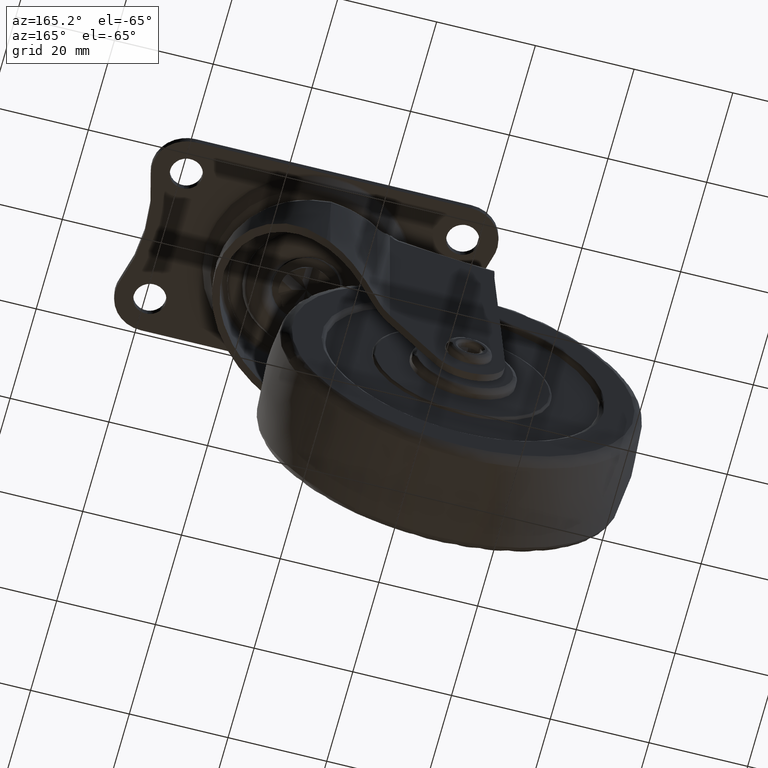
[diagram: clean part render]
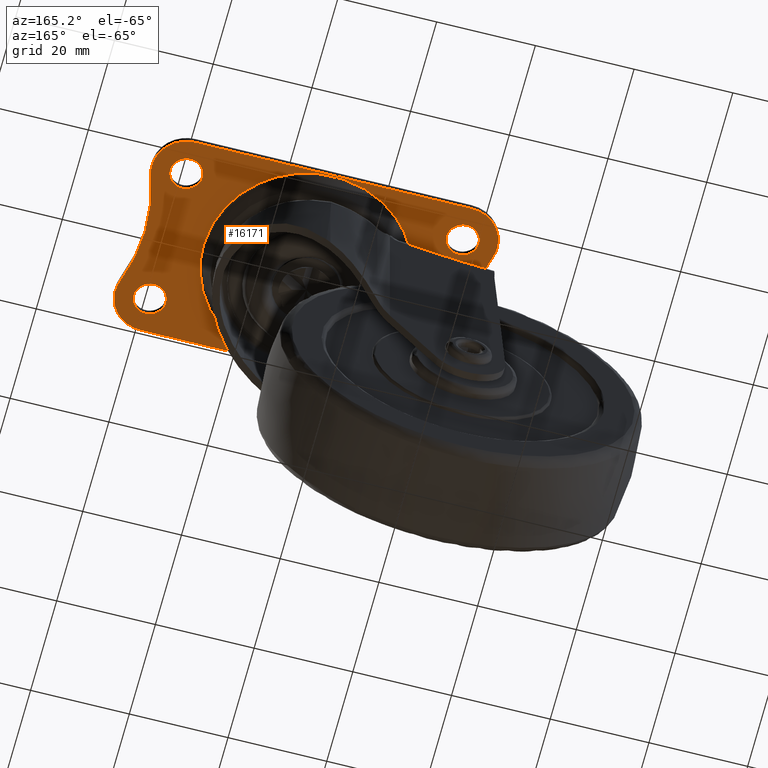
[diagram: same view with one face highlighted and labeled with its STEP entity id]
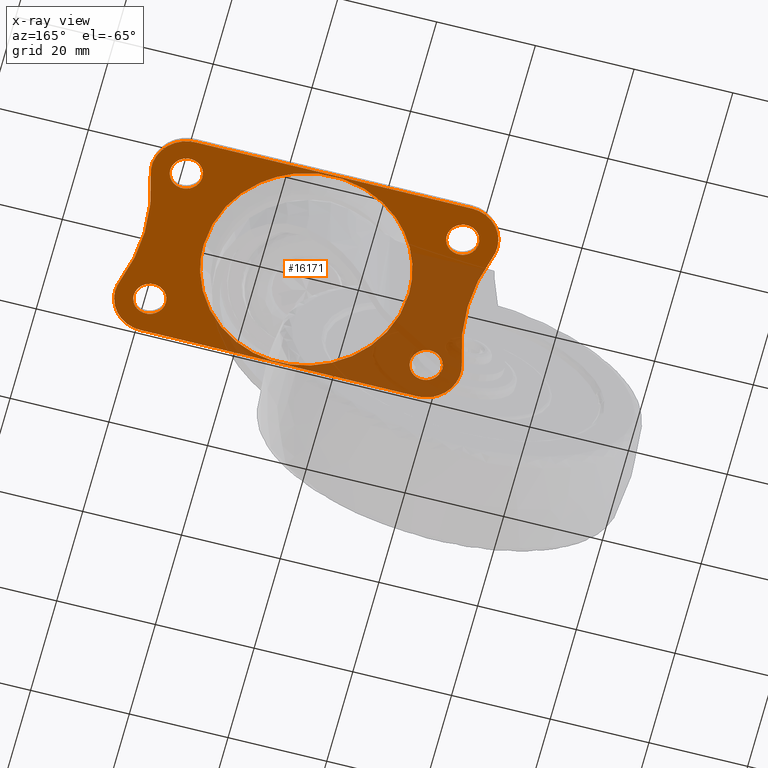
[diagram: x-ray of the same camera — body ghosted, the highlighted face saturated]
A machine part, auxiliary view. The second image highlights one B-rep face of the part: STEP entity #16171.
The next image is the same camera in x-ray: the body ghosted, the highlighted face saturated — about 35% of this face is hidden behind the body in this view.
In plain terms, the highlighted face is a freeform B-spline surface patch.
Its self-contained STEP definition (entity closure, byte-faithful):
#9515=CARTESIAN_POINT('',(-28.383611239365209,10.772719237960120,3.549285E-017));
#9516=VERTEX_POINT('',#9515);
#9517=CARTESIAN_POINT('',(-24.750000199999999,14.0,0.0));
#9518=VERTEX_POINT('',#9517);
#9519=CARTESIAN_POINT('',(-28.383611239365212,10.772719237960120,3.549285E-017));
#9520=CARTESIAN_POINT('',(-28.192478377365045,10.750000199999999,0.0));
#9521=CARTESIAN_POINT('',(-28.0,10.750000200000001,0.0));
#9522=CARTESIAN_POINT('',(-24.750000200000002,10.750000200000001,0.0));
#9523=CARTESIAN_POINT('',(-24.750000199999999,14.0,0.0));
#9531=(BOUNDED_CURVE()B_SPLINE_CURVE(2,(#9519,#9520,#9521,#9522,#9523),.UNSPECIFIED.,.F.,.U.)B_SPLINE_CURVE_WITH_KNOTS((3,2,3),(0.229562473480287,0.250000000000000,0.500000000000000),.UNSPECIFIED.)CURVE()GEOMETRIC_REPRESENTATION_ITEM()RATIONAL_B_SPLINE_CURVE((0.956026754118583,0.976055948292223,1.0,0.707106781186548,1.0))REPRESENTATION_ITEM(''));
#9532=EDGE_CURVE('',#9516,#9518,#9531,.T.);
#9573=CARTESIAN_POINT('',(-27.801592258672109,17.243937895241089,-5.551115E-017));
#9574=VERTEX_POINT('',#9573);
#9580=CARTESIAN_POINT('',(-24.750000199999999,14.0,0.0));
#9581=CARTESIAN_POINT('',(-24.750000199999995,17.057294529209173,0.0));
#9582=CARTESIAN_POINT('',(-27.801592258672105,17.243937895241089,-5.551115E-017));
#9590=(BOUNDED_CURVE()B_SPLINE_CURVE(2,(#9580,#9581,#9582),.UNSPECIFIED.,.F.,.U.)B_SPLINE_CURVE_WITH_KNOTS((3,3),(0.500000000000000,0.739332962236722),.UNSPECIFIED.)CURVE()GEOMETRIC_REPRESENTATION_ITEM()RATIONAL_B_SPLINE_CURVE((1.0,0.719603993289312,0.976072041661959))REPRESENTATION_ITEM(''));
#9591=EDGE_CURVE('',#9518,#9574,#9590,.T.);
#9614=CARTESIAN_POINT('',(-31.249999800000001,14.0,0.0));
#9615=VERTEX_POINT('',#9614);
#9616=CARTESIAN_POINT('',(-31.249999800000001,14.0,0.0));
#9617=CARTESIAN_POINT('',(-31.249999800000005,11.113432968901122,0.0));
#9618=CARTESIAN_POINT('',(-28.383611239365212,10.772719237960120,3.549285E-017));
#9626=(BOUNDED_CURVE()B_SPLINE_CURVE(2,(#9616,#9617,#9618),.UNSPECIFIED.,.F.,.U.)B_SPLINE_CURVE_WITH_KNOTS((3,3),(0.0,0.229562473480286),.UNSPECIFIED.)CURVE()GEOMETRIC_REPRESENTATION_ITEM()RATIONAL_B_SPLINE_CURVE((1.0,0.731050832894324,0.956026754118583))REPRESENTATION_ITEM(''));
#9627=EDGE_CURVE('',#9615,#9516,#9626,.T.);
#9629=CARTESIAN_POINT('',(-27.801592258672105,17.243937895241086,-5.551115E-017));
#9630=CARTESIAN_POINT('',(-27.900703525340681,17.249999800000001,0.0));
#9631=CARTESIAN_POINT('',(-28.0,17.249999800000001,0.0));
#9632=CARTESIAN_POINT('',(-31.249999800000008,17.249999800000001,0.0));
#9633=CARTESIAN_POINT('',(-31.249999800000001,14.0,0.0));
#9641=(BOUNDED_CURVE()B_SPLINE_CURVE(2,(#9629,#9630,#9631,#9632,#9633),.UNSPECIFIED.,.F.,.U.)B_SPLINE_CURVE_WITH_KNOTS((3,2,3),(0.739332962236722,0.750000000000000,1.0),.UNSPECIFIED.)CURVE()GEOMETRIC_REPRESENTATION_ITEM()RATIONAL_B_SPLINE_CURVE((0.976072041661957,0.987502787897235,1.0,0.707106781186548,1.0))REPRESENTATION_ITEM(''));
#9642=EDGE_CURVE('',#9574,#9615,#9641,.T.);
#9701=CARTESIAN_POINT('',(-28.383611239365209,-17.227288762039748,3.549285E-017));
#9702=VERTEX_POINT('',#9701);
#9703=CARTESIAN_POINT('',(-24.750000199999999,-14.000007999999861,0.0));
#9704=VERTEX_POINT('',#9703);
#9705=CARTESIAN_POINT('',(-28.383611239365209,-17.227288762039748,3.549285E-017));
#9706=CARTESIAN_POINT('',(-28.192478377365049,-17.250007799999860,0.0));
#9707=CARTESIAN_POINT('',(-28.0,-17.250007799999860,0.0));
#9708=CARTESIAN_POINT('',(-24.750000200000002,-17.250007799999860,0.0));
#9709=CARTESIAN_POINT('',(-24.750000199999999,-14.000007999999861,0.0));
#9717=(BOUNDED_CURVE()B_SPLINE_CURVE(2,(#9705,#9706,#9707,#9708,#9709),.UNSPECIFIED.,.F.,.U.)B_SPLINE_CURVE_WITH_KNOTS((3,2,3),(0.229562473480286,0.250000000000000,0.500000000000000),.UNSPECIFIED.)CURVE()GEOMETRIC_REPRESENTATION_ITEM()RATIONAL_B_SPLINE_CURVE((0.956026754118583,0.976055948292223,1.0,0.707106781186548,1.0))REPRESENTATION_ITEM(''));
#9718=EDGE_CURVE('',#9702,#9704,#9717,.T.);
#9759=CARTESIAN_POINT('',(-27.801592258672109,-10.756070104758770,-5.551115E-017));
#9760=VERTEX_POINT('',#9759);
#9766=CARTESIAN_POINT('',(-24.750000199999999,-14.000007999999861,0.0));
#9767=CARTESIAN_POINT('',(-24.750000199999995,-10.942713470790693,0.0));
#9768=CARTESIAN_POINT('',(-27.801592258672105,-10.756070104758768,-5.551115E-017));
#9776=(BOUNDED_CURVE()B_SPLINE_CURVE(2,(#9766,#9767,#9768),.UNSPECIFIED.,.F.,.U.)B_SPLINE_CURVE_WITH_KNOTS((3,3),(0.500000000000000,0.739332962236722),.UNSPECIFIED.)CURVE()GEOMETRIC_REPRESENTATION_ITEM()RATIONAL_B_SPLINE_CURVE((1.0,0.719603993289312,0.976072041661959))REPRESENTATION_ITEM(''));
#9777=EDGE_CURVE('',#9704,#9760,#9776,.T.);
#9800=CARTESIAN_POINT('',(-31.249999800000001,-14.000007999999861,0.0));
#9801=VERTEX_POINT('',#9800);
#9802=CARTESIAN_POINT('',(-31.249999800000001,-14.000007999999861,0.0));
#9803=CARTESIAN_POINT('',(-31.249999800000001,-16.886575031098747,0.0));
#9804=CARTESIAN_POINT('',(-28.383611239365209,-17.227288762039748,3.549285E-017));
#9812=(BOUNDED_CURVE()B_SPLINE_CURVE(2,(#9802,#9803,#9804),.UNSPECIFIED.,.F.,.U.)B_SPLINE_CURVE_WITH_KNOTS((3,3),(0.0,0.229562473480286),.UNSPECIFIED.)CURVE()GEOMETRIC_REPRESENTATION_ITEM()RATIONAL_B_SPLINE_CURVE((1.0,0.731050832894324,0.956026754118583))REPRESENTATION_ITEM(''));
#9813=EDGE_CURVE('',#9801,#9702,#9812,.T.);
#9815=CARTESIAN_POINT('',(-27.801592258672105,-10.756070104758775,-5.551115E-017));
#9816=CARTESIAN_POINT('',(-27.900703525340681,-10.750008199999860,0.0));
#9817=CARTESIAN_POINT('',(-28.0,-10.750008199999860,0.0));
#9818=CARTESIAN_POINT('',(-31.249999800000008,-10.750008199999861,0.0));
#9819=CARTESIAN_POINT('',(-31.249999800000001,-14.000007999999861,0.0));
#9827=(BOUNDED_CURVE()B_SPLINE_CURVE(2,(#9815,#9816,#9817,#9818,#9819),.UNSPECIFIED.,.F.,.U.)B_SPLINE_CURVE_WITH_KNOTS((3,2,3),(0.739332962236722,0.750000000000000,1.0),.UNSPECIFIED.)CURVE()GEOMETRIC_REPRESENTATION_ITEM()RATIONAL_B_SPLINE_CURVE((0.976072041661957,0.987502787897235,1.0,0.707106781186548,1.0))REPRESENTATION_ITEM(''));
#9828=EDGE_CURVE('',#9760,#9801,#9827,.T.);
#9887=CARTESIAN_POINT('',(27.616388760634791,10.772719237960120,3.549285E-017));
#9888=VERTEX_POINT('',#9887);
#9889=CARTESIAN_POINT('',(31.249999800000001,14.0,0.0));
#9890=VERTEX_POINT('',#9889);
#9891=CARTESIAN_POINT('',(27.616388760634791,10.772719237960118,3.549285E-017));
#9892=CARTESIAN_POINT('',(27.807521622634955,10.750000199999997,0.0));
#9893=CARTESIAN_POINT('',(28.0,10.750000200000001,0.0));
#9894=CARTESIAN_POINT('',(31.249999800000008,10.750000200000001,0.0));
#9895=CARTESIAN_POINT('',(31.249999800000001,14.0,0.0));
#9903=(BOUNDED_CURVE()B_SPLINE_CURVE(2,(#9891,#9892,#9893,#9894,#9895),.UNSPECIFIED.,.F.,.U.)B_SPLINE_CURVE_WITH_KNOTS((3,2,3),(0.229562473480287,0.250000000000000,0.500000000000000),.UNSPECIFIED.)CURVE()GEOMETRIC_REPRESENTATION_ITEM()RATIONAL_B_SPLINE_CURVE((0.956026754118583,0.976055948292223,1.0,0.707106781186548,1.0))REPRESENTATION_ITEM(''));
#9904=EDGE_CURVE('',#9888,#9890,#9903,.T.);
#9945=CARTESIAN_POINT('',(28.198407741327902,17.243937895241089,-5.551115E-017));
#9946=VERTEX_POINT('',#9945);
#9952=CARTESIAN_POINT('',(31.249999800000001,14.0,0.0));
#9953=CARTESIAN_POINT('',(31.249999799999998,17.057294529209173,0.0));
#9954=CARTESIAN_POINT('',(28.198407741327895,17.243937895241089,-5.551115E-017));
#9962=(BOUNDED_CURVE()B_SPLINE_CURVE(2,(#9952,#9953,#9954),.UNSPECIFIED.,.F.,.U.)B_SPLINE_CURVE_WITH_KNOTS((3,3),(0.500000000000000,0.739332962236722),.UNSPECIFIED.)CURVE()GEOMETRIC_REPRESENTATION_ITEM()RATIONAL_B_SPLINE_CURVE((1.0,0.719603993289312,0.976072041661959))REPRESENTATION_ITEM(''));
#9963=EDGE_CURVE('',#9890,#9946,#9962,.T.);
#9986=CARTESIAN_POINT('',(24.750000199999999,14.0,0.0));
#9987=VERTEX_POINT('',#9986);
#9988=CARTESIAN_POINT('',(24.750000199999999,14.0,0.0));
#9989=CARTESIAN_POINT('',(24.750000199999999,11.113432968901121,0.0));
#9990=CARTESIAN_POINT('',(27.616388760634795,10.772719237960118,3.549285E-017));
#9998=(BOUNDED_CURVE()B_SPLINE_CURVE(2,(#9988,#9989,#9990),.UNSPECIFIED.,.F.,.U.)B_SPLINE_CURVE_WITH_KNOTS((3,3),(0.0,0.229562473480287),.UNSPECIFIED.)CURVE()GEOMETRIC_REPRESENTATION_ITEM()RATIONAL_B_SPLINE_CURVE((1.0,0.731050832894324,0.956026754118583))REPRESENTATION_ITEM(''));
#9999=EDGE_CURVE('',#9987,#9888,#9998,.T.);
#10001=CARTESIAN_POINT('',(28.198407741327895,17.243937895241086,-5.551115E-017));
#10002=CARTESIAN_POINT('',(28.099296474659322,17.249999800000001,0.0));
#10003=CARTESIAN_POINT('',(28.0,17.249999800000001,0.0));
#10004=CARTESIAN_POINT('',(24.750000200000002,17.249999800000001,0.0));
#10005=CARTESIAN_POINT('',(24.750000199999999,14.0,0.0));
#10013=(BOUNDED_CURVE()B_SPLINE_CURVE(2,(#10001,#10002,#10003,#10004,#10005),.UNSPECIFIED.,.F.,.U.)B_SPLINE_CURVE_WITH_KNOTS((3,2,3),(0.739332962236722,0.750000000000000,1.0),.UNSPECIFIED.)CURVE()GEOMETRIC_REPRESENTATION_ITEM()RATIONAL_B_SPLINE_CURVE((0.976072041661957,0.987502787897235,1.0,0.707106781186548,1.0))REPRESENTATION_ITEM(''));
#10014=EDGE_CURVE('',#9946,#9987,#10013,.T.);
#10073=CARTESIAN_POINT('',(27.616388760634791,-17.227280762039879,3.549285E-017));
#10074=VERTEX_POINT('',#10073);
#10075=CARTESIAN_POINT('',(31.249999800000001,-14.0,0.0));
#10076=VERTEX_POINT('',#10075);
#10077=CARTESIAN_POINT('',(27.616388760634788,-17.227280762039882,3.549285E-017));
#10078=CARTESIAN_POINT('',(27.807521622634951,-17.249999799999998,0.0));
#10079=CARTESIAN_POINT('',(28.0,-17.249999800000001,0.0));
#10080=CARTESIAN_POINT('',(31.249999800000008,-17.249999800000001,0.0));
#10081=CARTESIAN_POINT('',(31.249999800000001,-14.0,0.0));
#10089=(BOUNDED_CURVE()B_SPLINE_CURVE(2,(#10077,#10078,#10079,#10080,#10081),.UNSPECIFIED.,.F.,.U.)B_SPLINE_CURVE_WITH_KNOTS((3,2,3),(0.229562473480286,0.250000000000000,0.500000000000000),.UNSPECIFIED.)CURVE()GEOMETRIC_REPRESENTATION_ITEM()RATIONAL_B_SPLINE_CURVE((0.956026754118583,0.976055948292223,1.0,0.707106781186548,1.0))REPRESENTATION_ITEM(''));
#10090=EDGE_CURVE('',#10074,#10076,#10089,.T.);
#10131=CARTESIAN_POINT('',(28.198407741327902,-10.756062104758909,-5.551115E-017));
#10132=VERTEX_POINT('',#10131);
#10138=CARTESIAN_POINT('',(31.249999800000001,-14.0,0.0));
#10139=CARTESIAN_POINT('',(31.249999799999998,-10.942705470790830,0.0));
#10140=CARTESIAN_POINT('',(28.198407741327902,-10.756062104758916,-5.551115E-017));
#10148=(BOUNDED_CURVE()B_SPLINE_CURVE(2,(#10138,#10139,#10140),.UNSPECIFIED.,.F.,.U.)B_SPLINE_CURVE_WITH_KNOTS((3,3),(0.500000000000000,0.739332962236722),.UNSPECIFIED.)CURVE()GEOMETRIC_REPRESENTATION_ITEM()RATIONAL_B_SPLINE_CURVE((1.0,0.719603993289312,0.976072041661959))REPRESENTATION_ITEM(''));
#10149=EDGE_CURVE('',#10076,#10132,#10148,.T.);
#10172=CARTESIAN_POINT('',(24.750000199999999,-14.0,0.0));
#10173=VERTEX_POINT('',#10172);
#10174=CARTESIAN_POINT('',(24.750000199999999,-14.0,0.0));
#10175=CARTESIAN_POINT('',(24.750000199999999,-16.886567031098878,0.0));
#10176=CARTESIAN_POINT('',(27.616388760634788,-17.227280762039882,3.549285E-017));
#10184=(BOUNDED_CURVE()B_SPLINE_CURVE(2,(#10174,#10175,#10176),.UNSPECIFIED.,.F.,.U.)B_SPLINE_CURVE_WITH_KNOTS((3,3),(0.0,0.229562473480286),.UNSPECIFIED.)CURVE()GEOMETRIC_REPRESENTATION_ITEM()RATIONAL_B_SPLINE_CURVE((1.0,0.731050832894324,0.956026754118583))REPRESENTATION_ITEM(''));
#10185=EDGE_CURVE('',#10173,#10074,#10184,.T.);
#10187=CARTESIAN_POINT('',(28.198407741327902,-10.756062104758913,-5.551115E-017));
#10188=CARTESIAN_POINT('',(28.099296474659322,-10.750000199999997,0.0));
#10189=CARTESIAN_POINT('',(28.0,-10.750000200000001,0.0));
#10190=CARTESIAN_POINT('',(24.750000200000002,-10.750000200000001,0.0));
#10191=CARTESIAN_POINT('',(24.750000199999999,-14.0,0.0));
#10199=(BOUNDED_CURVE()B_SPLINE_CURVE(2,(#10187,#10188,#10189,#10190,#10191),.UNSPECIFIED.,.F.,.U.)B_SPLINE_CURVE_WITH_KNOTS((3,2,3),(0.739332962236722,0.750000000000000,1.0),.UNSPECIFIED.)CURVE()GEOMETRIC_REPRESENTATION_ITEM()RATIONAL_B_SPLINE_CURVE((0.976072041661957,0.987502787897235,1.0,0.707106781186548,1.0))REPRESENTATION_ITEM(''));
#10200=EDGE_CURVE('',#10132,#10173,#10199,.T.);
#13275=CARTESIAN_POINT('',(7.606001770532384,19.358883315792870,-1.198900E-016));
#13276=VERTEX_POINT('',#13275);
#13290=CARTESIAN_POINT('',(20.799462165151049,0.0,0.0));
#13291=VERTEX_POINT('',#13290);
#13292=CARTESIAN_POINT('',(20.799462165151049,0.0,0.0));
#13293=CARTESIAN_POINT('',(20.799462165151056,14.175243258175271,0.0));
#13294=CARTESIAN_POINT('',(7.606001770532384,19.358883315792870,-1.198900E-016));
#13302=(BOUNDED_CURVE()B_SPLINE_CURVE(2,(#13292,#13293,#13294),.UNSPECIFIED.,.F.,.U.)B_SPLINE_CURVE_WITH_KNOTS((3,3),(0.500000000000000,0.687908131215531),.UNSPECIFIED.)CURVE()GEOMETRIC_REPRESENTATION_ITEM()RATIONAL_B_SPLINE_CURVE((1.0,0.779851930428251,0.890644759607974))REPRESENTATION_ITEM(''));
#13303=EDGE_CURVE('',#13291,#13276,#13302,.T.);
#13305=CARTESIAN_POINT('',(-20.799462165151049,0.0,0.0));
#13306=VERTEX_POINT('',#13305);
#13307=CARTESIAN_POINT('',(-20.799462165151049,0.0,0.0));
#13308=CARTESIAN_POINT('',(-20.799462165151056,-20.799462165151056,0.0));
#13309=CARTESIAN_POINT('',(0.0,-20.799462165151049,0.0));
#13310=CARTESIAN_POINT('',(20.799462165151056,-20.799462165151056,0.0));
#13311=CARTESIAN_POINT('',(20.799462165151049,0.0,0.0));
#13319=(BOUNDED_CURVE()B_SPLINE_CURVE(2,(#13307,#13308,#13309,#13310,#13311),.UNSPECIFIED.,.F.,.U.)B_SPLINE_CURVE_WITH_KNOTS((3,2,3),(0.0,0.250000000000000,0.500000000000000),.UNSPECIFIED.)CURVE()GEOMETRIC_REPRESENTATION_ITEM()RATIONAL_B_SPLINE_CURVE((1.0,0.707106781186547,1.0,0.707106781186547,1.0))REPRESENTATION_ITEM(''));
#13320=EDGE_CURVE('',#13306,#13291,#13319,.T.);
#13322=CARTESIAN_POINT('',(-18.351182982869229,9.790388628054897,-9.177684E-017));
#13323=VERTEX_POINT('',#13322);
#13324=CARTESIAN_POINT('',(-18.351182982869222,9.790388628054895,-9.177684E-017));
#13325=CARTESIAN_POINT('',(-20.799462165151049,5.201314488726688,0.0));
#13326=CARTESIAN_POINT('',(-20.799462165151049,0.0,0.0));
#13334=(BOUNDED_CURVE()B_SPLINE_CURVE(2,(#13324,#13325,#13326),.UNSPECIFIED.,.F.,.U.)B_SPLINE_CURVE_WITH_KNOTS((3,3),(0.919885466191762,1.0),.UNSPECIFIED.)CURVE()GEOMETRIC_REPRESENTATION_ITEM()RATIONAL_B_SPLINE_CURVE((0.872436381135683,0.906139985276664,1.0))REPRESENTATION_ITEM(''));
#13335=EDGE_CURVE('',#13323,#13306,#13334,.T.);
#13376=CARTESIAN_POINT('',(7.606001770532384,19.358883315792863,-1.198900E-016));
#13377=CARTESIAN_POINT('',(3.939423902550758,20.799462165151045,0.0));
#13378=CARTESIAN_POINT('',(0.0,20.799462165151049,0.0));
#13379=CARTESIAN_POINT('',(-12.477822749723179,20.799462165151052,0.0));
#13380=CARTESIAN_POINT('',(-18.351182982869226,9.790388628054897,-9.177684E-017));
#13388=(BOUNDED_CURVE()B_SPLINE_CURVE(2,(#13376,#13377,#13378,#13379,#13380),.UNSPECIFIED.,.F.,.U.)B_SPLINE_CURVE_WITH_KNOTS((3,2,3),(0.687908131215530,0.750000000000000,0.919885466191762),.UNSPECIFIED.)CURVE()GEOMETRIC_REPRESENTATION_ITEM()RATIONAL_B_SPLINE_CURVE((0.890644759607972,0.927254850758296,1.0,0.800966795909884,0.872436381135683))REPRESENTATION_ITEM(''));
#13389=EDGE_CURVE('',#13276,#13323,#13388,.T.);
#15782=CARTESIAN_POINT('',(34.612583487418703,11.703537585346320,0.0));
#15783=VERTEX_POINT('',#15782);
#15784=CARTESIAN_POINT('',(28.000001329768750,20.999999999999400,0.0));
#15785=VERTEX_POINT('',#15784);
#15786=CARTESIAN_POINT('',(34.612583487418732,11.703537585346311,0.0));
#15787=CARTESIAN_POINT('',(35.797259786264931,15.114771699912929,0.0));
#15788=CARTESIAN_POINT('',(33.704175913126392,18.057385506962429,0.0));
#15789=CARTESIAN_POINT('',(31.611092039987835,20.999999314011937,0.0));
#15790=CARTESIAN_POINT('',(28.000001329768750,20.999999999999400,0.0));
#15798=(BOUNDED_CURVE()B_SPLINE_CURVE(2,(#15786,#15787,#15788,#15789,#15790),.UNSPECIFIED.,.F.,.U.)B_SPLINE_CURVE_WITH_KNOTS((3,2,3),(0.0,0.500000000000000,1.0),.UNSPECIFIED.)CURVE()GEOMETRIC_REPRESENTATION_ITEM()RATIONAL_B_SPLINE_CURVE((1.0,0.888714424265561,1.0,0.888714424265561,1.0))REPRESENTATION_ITEM(''));
#15799=EDGE_CURVE('',#15783,#15785,#15798,.T.);
#15847=CARTESIAN_POINT('',(34.609303948770297,-11.694115936832601,0.0));
#15848=VERTEX_POINT('',#15847);
#15849=CARTESIAN_POINT('',(34.612583487418703,11.703537585346320,0.0));
#15850=CARTESIAN_POINT('',(30.527562404083348,0.005283705689020,0.0));
#15851=CARTESIAN_POINT('',(34.609303948770297,-11.694115936832601,0.0));
#15859=(BOUNDED_CURVE()B_SPLINE_CURVE(2,(#15849,#15850,#15851),.UNSPECIFIED.,.F.,.U.)CURVE()GEOMETRIC_REPRESENTATION_ITEM()QUASI_UNIFORM_CURVE()RATIONAL_B_SPLINE_CURVE((1.0,0.944140053967858,1.0))REPRESENTATION_ITEM(''));
#15860=EDGE_CURVE('',#15783,#15848,#15859,.T.);
#15900=CARTESIAN_POINT('',(28.0,-21.0,0.0));
#15901=VERTEX_POINT('',#15900);
#15902=CARTESIAN_POINT('',(28.0,-21.0,0.0));
#15903=CARTESIAN_POINT('',(31.614249456186542,-21.000000000000004,0.0));
#15904=CARTESIAN_POINT('',(33.707065289716411,-18.053320340031629,0.0));
#15905=CARTESIAN_POINT('',(35.799881123246294,-15.106640680063252,0.0));
#15906=CARTESIAN_POINT('',(34.609303948770290,-11.694115936832601,0.0));
#15914=(BOUNDED_CURVE()B_SPLINE_CURVE(2,(#15902,#15903,#15904,#15905,#15906),.UNSPECIFIED.,.F.,.U.)B_SPLINE_CURVE_WITH_KNOTS((3,2,3),(0.0,0.500000000000000,1.0),.UNSPECIFIED.)CURVE()GEOMETRIC_REPRESENTATION_ITEM()RATIONAL_B_SPLINE_CURVE((1.0,0.888551001029671,1.0,0.888551001029671,1.0))REPRESENTATION_ITEM(''));
#15915=EDGE_CURVE('',#15901,#15848,#15914,.T.);
#15957=CARTESIAN_POINT('',(-34.609300374364203,-11.694120049033801,0.0));
#15958=VERTEX_POINT('',#15957);
#15959=CARTESIAN_POINT('',(-28.000006108652400,-20.999999999997350,0.0));
#15960=VERTEX_POINT('',#15959);
#15961=CARTESIAN_POINT('',(-34.609300374364203,-11.694120049033801,0.0));
#15962=CARTESIAN_POINT('',(-35.799876129449011,-15.106642331600746,0.0));
#15963=CARTESIAN_POINT('',(-33.707064042312901,-18.053319731614579,0.0));
#15964=CARTESIAN_POINT('',(-31.614251955176787,-20.999997131628430,0.0));
#15965=CARTESIAN_POINT('',(-28.000006108652400,-20.999999999997350,0.0));
#15973=(BOUNDED_CURVE()B_SPLINE_CURVE(2,(#15961,#15962,#15963,#15964,#15965),.UNSPECIFIED.,.F.,.U.)B_SPLINE_CURVE_WITH_KNOTS((3,2,3),(0.0,0.500000000000000,1.0),.UNSPECIFIED.)CURVE()GEOMETRIC_REPRESENTATION_ITEM()RATIONAL_B_SPLINE_CURVE((1.0,0.888551145444471,1.0,0.888551145444471,1.0))REPRESENTATION_ITEM(''));
#15974=EDGE_CURVE('',#15958,#15960,#15973,.T.);
#16022=CARTESIAN_POINT('',(-34.611171447356462,11.699465691574160,0.0));
#16023=VERTEX_POINT('',#16022);
#16024=CARTESIAN_POINT('',(-34.609300374364203,-11.694120049033810,0.0));
#16025=CARTESIAN_POINT('',(-30.528361173387893,0.002999299034800,0.0));
#16026=CARTESIAN_POINT('',(-34.611171447356540,11.699465691574130,0.0));
#16034=(BOUNDED_CURVE()B_SPLINE_CURVE(2,(#16024,#16025,#16026),.UNSPECIFIED.,.F.,.U.)CURVE()GEOMETRIC_REPRESENTATION_ITEM()QUASI_UNIFORM_CURVE()RATIONAL_B_SPLINE_CURVE((1.0,0.944160055577155,1.0))REPRESENTATION_ITEM(''));
#16035=EDGE_CURVE('',#15958,#16023,#16034,.T.);
#16077=CARTESIAN_POINT('',(-27.999999525442600,20.999989999999450,-2.775558E-013));
#16078=VERTEX_POINT('',#16077);
#16084=CARTESIAN_POINT('',(-27.999999525442600,20.999989999999450,-2.775558E-013));
#16085=CARTESIAN_POINT('',(-31.612452100327992,20.999990244902431,0.0));
#16086=CARTESIAN_POINT('',(-33.705421413953637,18.055623919524841,0.0));
#16087=CARTESIAN_POINT('',(-35.798390727579282,15.111257594147256,0.0));
#16088=CARTESIAN_POINT('',(-34.611171447356462,11.699465691574170,0.0));
#16096=(BOUNDED_CURVE()B_SPLINE_CURVE(2,(#16084,#16085,#16086,#16087,#16088),.UNSPECIFIED.,.F.,.U.)B_SPLINE_CURVE_WITH_KNOTS((3,2,3),(0.0,0.500000000000000,1.0),.UNSPECIFIED.)CURVE()GEOMETRIC_REPRESENTATION_ITEM()RATIONAL_B_SPLINE_CURVE((1.0,0.888643972286340,1.0,0.888643972286340,1.0))REPRESENTATION_ITEM(''));
#16097=EDGE_CURVE('',#16078,#16023,#16096,.T.);
#16118=CARTESIAN_POINT('',(-38.495357463321497,23.097899918595221,0.0));
#16119=CARTESIAN_POINT('',(38.495417195569317,23.097899918595221,0.0));
#16120=CARTESIAN_POINT('',(-38.495357463321497,-23.097901045123610,0.0));
#16121=CARTESIAN_POINT('',(38.495417195569317,-23.097901045123610,0.0));
#16122=B_SPLINE_SURFACE_WITH_KNOTS('',1,1,((#16118,#16120),(#16119,#16121)),.UNSPECIFIED.,.F.,.F.,.U.,(2,2),(2,2),(0.0,76.990774658890814),(0.0,46.195800963718817),.UNSPECIFIED.);
#16123=CARTESIAN_POINT('',(28.000001329768750,20.999999999999400,0.0));
#16124=CARTESIAN_POINT('',(-27.999999525442600,20.999989999999450,-2.775558E-013));
#16125=QUASI_UNIFORM_CURVE('',1,(#16123,#16124),.UNSPECIFIED.,.F.,.U.);
#16126=EDGE_CURVE('',#15785,#16078,#16125,.T.);
#16127=ORIENTED_EDGE('',*,*,#16126,.F.);
#16128=ORIENTED_EDGE('',*,*,#15799,.F.);
#16129=ORIENTED_EDGE('',*,*,#15860,.T.);
#16130=ORIENTED_EDGE('',*,*,#15915,.F.);
#16131=CARTESIAN_POINT('',(-28.000006108652400,-20.999999999997350,0.0));
#16132=CARTESIAN_POINT('',(28.0,-21.0,0.0));
#16133=QUASI_UNIFORM_CURVE('',1,(#16131,#16132),.UNSPECIFIED.,.F.,.U.);
#16134=EDGE_CURVE('',#15960,#15901,#16133,.T.);
#16135=ORIENTED_EDGE('',*,*,#16134,.F.);
#16136=ORIENTED_EDGE('',*,*,#15974,.F.);
#16137=ORIENTED_EDGE('',*,*,#16035,.T.);
#16138=ORIENTED_EDGE('',*,*,#16097,.F.);
#16139=EDGE_LOOP('',(#16127,#16128,#16129,#16130,#16135,#16136,#16137,#16138));
#16140=FACE_OUTER_BOUND('',#16139,.T.);
#16141=ORIENTED_EDGE('',*,*,#13320,.T.);
#16142=ORIENTED_EDGE('',*,*,#13303,.T.);
#16143=ORIENTED_EDGE('',*,*,#13389,.T.);
#16144=ORIENTED_EDGE('',*,*,#13335,.T.);
#16145=EDGE_LOOP('',(#16141,#16142,#16143,#16144));
#16146=FACE_BOUND('',#16145,.T.);
#16147=ORIENTED_EDGE('',*,*,#10149,.T.);
#16148=ORIENTED_EDGE('',*,*,#10200,.T.);
#16149=ORIENTED_EDGE('',*,*,#10185,.T.);
#16150=ORIENTED_EDGE('',*,*,#10090,.T.);
#16151=EDGE_LOOP('',(#16147,#16148,#16149,#16150));
#16152=FACE_BOUND('',#16151,.T.);
#16153=ORIENTED_EDGE('',*,*,#9963,.T.);
#16154=ORIENTED_EDGE('',*,*,#10014,.T.);
#16155=ORIENTED_EDGE('',*,*,#9999,.T.);
#16156=ORIENTED_EDGE('',*,*,#9904,.T.);
#16157=EDGE_LOOP('',(#16153,#16154,#16155,#16156));
#16158=FACE_BOUND('',#16157,.T.);
#16159=ORIENTED_EDGE('',*,*,#9777,.T.);
#16160=ORIENTED_EDGE('',*,*,#9828,.T.);
#16161=ORIENTED_EDGE('',*,*,#9813,.T.);
#16162=ORIENTED_EDGE('',*,*,#9718,.T.);
#16163=EDGE_LOOP('',(#16159,#16160,#16161,#16162));
#16164=FACE_BOUND('',#16163,.T.);
#16165=ORIENTED_EDGE('',*,*,#9591,.T.);
#16166=ORIENTED_EDGE('',*,*,#9642,.T.);
#16167=ORIENTED_EDGE('',*,*,#9627,.T.);
#16168=ORIENTED_EDGE('',*,*,#9532,.T.);
#16169=EDGE_LOOP('',(#16165,#16166,#16167,#16168));
#16170=FACE_BOUND('',#16169,.T.);
#16171=ADVANCED_FACE('',(#16140,#16146,#16152,#16158,#16164,#16170),#16122,.T.);